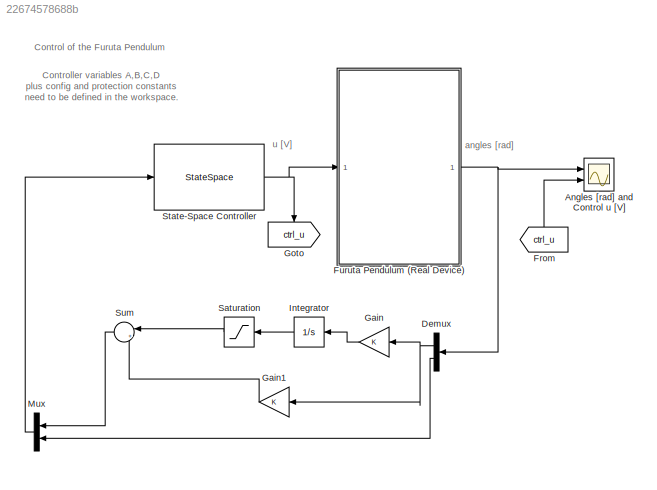
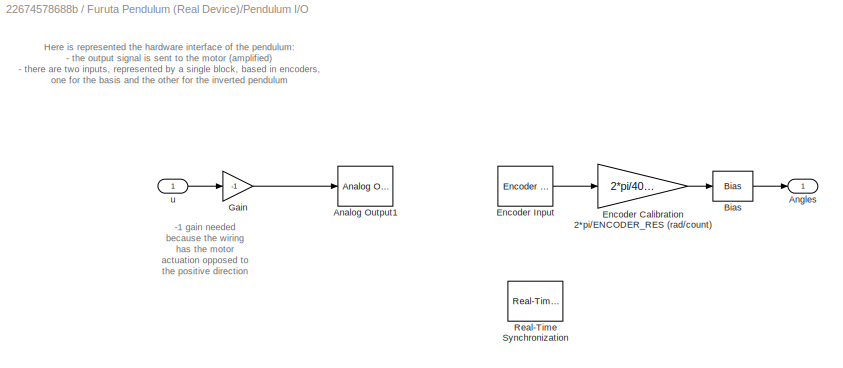
MODEL slx_22674578688b
KIND model
CONFIG AbsTol = auto
CONFIG FixedStep = auto
CONFIG MaxStep = auto
CONFIG MinStep = auto
CONFIG RelTol = 1e-3
CONFIG SampleTimeConstraint = Unconstrained
CONFIG Solver = ode3
CONFIG SolverMode = SingleTasking
CONFIG SolverName = ode3
CONFIG StartTime = 0.0
CONFIG StopTime = 60
BLOCK [Scope] Angles [rad] and Control u [V]
  DataFormat = StructureWithTime
  Floating = off
  LimitDataPoints = off
  NumInputPorts = 2
  Ports = [2]
  SampleInput = on
  SaveName = pendulum
  SaveToWorkspace = on
  YMax = 0.15~2.5
  YMin = -0.3~-2.5
  ZoomMode = yonly
BLOCK [Demux] Demux
  DisplayOption = bar
  Outputs = 2
  Ports = [1, 2]
BLOCK [From] From
  GotoTag = ctrl_u
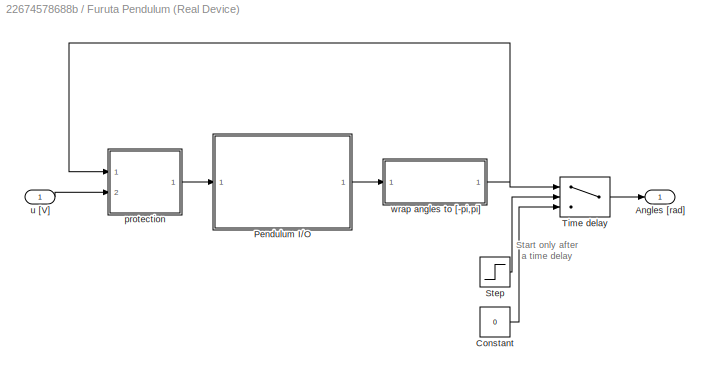
BLOCK [SubSystem] Furuta Pendulum (Real Device)
  Ports = [1, 1]
  RequestExecContextInheritance = off
BLOCK [Outport] Furuta Pendulum (Real Device)/Angles [rad]
  IconDisplay = Port number
BLOCK [Constant] Furuta Pendulum (Real Device)/Constant
  Value = 0
BLOCK [SubSystem] Furuta Pendulum (Real Device)/Pendulum I//O
  Ports = [1, 1]
  RequestExecContextInheritance = off
BLOCK [Reference] Furuta Pendulum (Real Device)/Pendulum I//O/Analog Output1  REF=sldrtlib/Analog Output
  AttributesFormatString = National Instruments\nPCI-6221 [auto]
  Channels = 1
  DrvAddress = 4294967295
  DrvName = National_Instruments/PCI-6221
  DrvOptions = [0 0 0 2 2]
  FinalValue = 0
  InitialValue = []
  MaxMissedTicks = inf
  Ports = [1]
  RangeMode = 1
  SampleTime = 0.001
  ShowMissedTicks = off
  SourceBlock = sldrtlib/Analog Output
  SourceType = Simulink Desktop Real-Time Analog Output
  VoltRange = 1
  YieldWhenWaiting = off
BLOCK [Outport] Furuta Pendulum (Real Device)/Pendulum I//O/Angles
  IconDisplay = Port number
BLOCK [Bias] Furuta Pendulum (Real Device)/Pendulum I//O/Bias
  Bias = [0 pi]
  SaturateOnIntegerOverflow = off
BLOCK [Gain] Furuta Pendulum (Real Device)/Pendulum I//O/Encoder Calibration 2*pi//ENCODER_RES (rad//count)
  Gain = 2*pi/4096
BLOCK [Reference] Furuta Pendulum (Real Device)/Pendulum I//O/Encoder Input  REF=sldrtlib/Encoder Input
  AttributesFormatString = National Instruments\nPCI-6221 [auto]
  Channels = 1:2
  DataType = 1
  DrvAddress = 4294967295
  DrvName = National_Instruments/PCI-6221
  DrvOptions = [0 0 0 2 2]
  IndexPulse = 2
  InputFilter = Inf
  MaxMissedTicks = inf
  Ports = [0, 1]
  QuadMode = 3
  SampleTime = 0.001
  ShowMissedTicks = off
  SourceBlock = sldrtlib/Encoder Input
  SourceType = Simulink Desktop Real-Time Encoder Input
  YieldWhenWaiting = off
BLOCK [Gain] Furuta Pendulum (Real Device)/Pendulum I//O/Gain
  Gain = -1
  OutDataTypeStr = Inherit: Inherit via internal rule
  ParamDataTypeStr = Inherit: Inherit via internal rule
  SaturateOnIntegerOverflow = off
BLOCK [Reference] Furuta Pendulum (Real Device)/Pendulum I//O/Real-Time Synchronization  REF=sldrtlib/Real-Time
Synchronization
  MaxMissedTicks = inf
  Ports = []
  SampleTime = 0.001
  ShowMissedTicks = off
  SourceBlock = sldrtlib/Real-Time\nSynchronization
  SourceType = Simulink Desktop Real-Time Synchronization
  YieldWhenWaiting = off
BLOCK [Inport] Furuta Pendulum (Real Device)/Pendulum I//O/u
  IconDisplay = Port number
BLOCK [Step] Furuta Pendulum (Real Device)/Step
  SampleTime = 0
  Time = TIME_DELAY
BLOCK [Switch] Furuta Pendulum (Real Device)/Time delay
  Criteria = u2 > Threshold
  InputSameDT = off
  SaturateOnIntegerOverflow = off
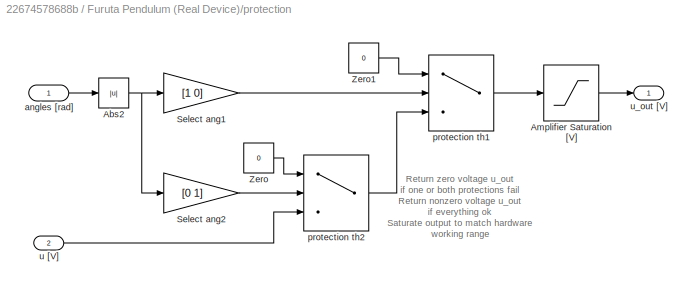
BLOCK [SubSystem] Furuta Pendulum (Real Device)/protection
  Ports = [2, 1]
  RequestExecContextInheritance = off
BLOCK [Abs] Furuta Pendulum (Real Device)/protection/Abs2
  SaturateOnIntegerOverflow = off
BLOCK [Saturate] Furuta Pendulum (Real Device)/protection/Amplifier Saturation [V]
  InputPortMap = u0
  LowerLimit = -MOTOR_SAT
  Ports = [1, 1]
  UpperLimit = MOTOR_SAT
BLOCK [Gain] Furuta Pendulum (Real Device)/protection/Select ang1
  Gain = [1 0]
  Multiplication = Matrix(K*u)
  OutDataTypeStr = Inherit: Inherit via internal rule
  ParamDataTypeStr = Inherit: Inherit via internal rule
  SaturateOnIntegerOverflow = off
BLOCK [Gain] Furuta Pendulum (Real Device)/protection/Select ang2
  Gain = [0 1]
  Multiplication = Matrix(K*u)
  OutDataTypeStr = Inherit: Inherit via internal rule
  ParamDataTypeStr = Inherit: Inherit via internal rule
  SaturateOnIntegerOverflow = off
BLOCK [Constant] Furuta Pendulum (Real Device)/protection/Zero
  Value = 0
BLOCK [Constant] Furuta Pendulum (Real Device)/protection/Zero1
  Value = 0
BLOCK [Inport] Furuta Pendulum (Real Device)/protection/angles [rad]
  IconDisplay = Port number
BLOCK [Switch] Furuta Pendulum (Real Device)/protection/protection th1
  InputSameDT = off
  SaturateOnIntegerOverflow = off
  Threshold = TH1_BOUND
BLOCK [Switch] Furuta Pendulum (Real Device)/protection/protection th2
  InputSameDT = off
  SaturateOnIntegerOverflow = off
  Threshold = TH2_BOUND
BLOCK [Inport] Furuta Pendulum (Real Device)/protection/u [V]
  IconDisplay = Port number
  Port = 2
BLOCK [Outport] Furuta Pendulum (Real Device)/protection/u_out [V]
  IconDisplay = Port number
BLOCK [Inport] Furuta Pendulum (Real Device)/u [V]
  IconDisplay = Port number
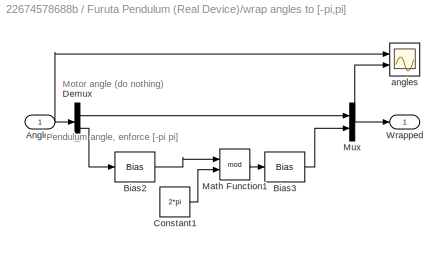
BLOCK [SubSystem] Furuta Pendulum (Real Device)/wrap angles to [-pi,pi]
  Ports = [1, 1]
  RequestExecContextInheritance = off
BLOCK [Inport] Furuta Pendulum (Real Device)/wrap angles to [-pi,pi]/Angles
  IconDisplay = Port number
BLOCK [Bias] Furuta Pendulum (Real Device)/wrap angles to [-pi,pi]/Bias2
  Bias = pi
  SaturateOnIntegerOverflow = off
BLOCK [Bias] Furuta Pendulum (Real Device)/wrap angles to [-pi,pi]/Bias3
  Bias = -pi
  SaturateOnIntegerOverflow = off
BLOCK [Constant] Furuta Pendulum (Real Device)/wrap angles to [-pi,pi]/Constant1
  Value = 2*pi
BLOCK [Demux] Furuta Pendulum (Real Device)/wrap angles to [-pi,pi]/Demux
  DisplayOption = bar
  Outputs = 2
  Ports = [1, 2]
BLOCK [Math] Furuta Pendulum (Real Device)/wrap angles to [-pi,pi]/Math Function1
  Operator = mod
  Ports = [2, 1]
BLOCK [Mux] Furuta Pendulum (Real Device)/wrap angles to [-pi,pi]/Mux
  DisplayOption = bar
  Inputs = 2
  Ports = [2, 1]
BLOCK [Outport] Furuta Pendulum (Real Device)/wrap angles to [-pi,pi]/Wrapped
  IconDisplay = Port number
BLOCK [Scope] Furuta Pendulum (Real Device)/wrap angles to [-pi,pi]/angles
  Floating = off
  LimitDataPoints = off
  NumInputPorts = 2
  Ports = [2]
  YMax = 7~4
  YMin = -1~-4
BLOCK [Gain] Gain
  OutDataTypeStr = Inherit: Inherit via internal rule
  ParamDataTypeStr = Inherit: Inherit via internal rule
  SaturateOnIntegerOverflow = off
BLOCK [Gain] Gain1
  OutDataTypeStr = Inherit: Inherit via internal rule
  ParamDataTypeStr = Inherit: Inherit via internal rule
  SaturateOnIntegerOverflow = off
BLOCK [Goto] Goto
  GotoTag = ctrl_u
BLOCK [Integrator] Integrator
  Ports = [1, 1]
BLOCK [Mux] Mux
  DisplayOption = bar
  Inputs = 2
  Ports = [2, 1]
BLOCK [Saturate] Saturation
  InputPortMap = u0
  LowerLimit = -3
  Ports = [1, 1]
  UpperLimit = 3
BLOCK [StateSpace] State-Space Controller
  A = A-B*K-L*C
  B = L
  C = -K
  D = D'
  Ports = [1, 1]
  X0 = 0
BLOCK [Sum] Sum
  IconShape = round
  InputSameDT = off
  Inputs = |++
  OutDataTypeStr = Inherit: Inherit via internal rule
  Ports = [2, 1]
  SaturateOnIntegerOverflow = off
ANNOTATION (root): Control of the Furuta Pendulum
ANNOTATION (root): angles [rad]
ANNOTATION (root): Controller variables A,B,C,D plus config and protection constants need to be defined in the workspace.
ANNOTATION (root): u [V]
ANNOTATION Furuta Pendulum (Real Device): Start only after a time delay
ANNOTATION Furuta Pendulum (Real Device)/Pendulum I//O: Here is represented the hardware interface of the pendulum: - the output signal is sent to the motor (amplified) - there are two inputs, represented by a single block, based in encoders, one for the basis and the other for the inverted pendulum
ANNOTATION Furuta Pendulum (Real Device)/Pendulum I//O: -1 gain needed because the wiring has the motor actuation opposed to the positive direction
ANNOTATION Furuta Pendulum (Real Device)/protection: Return zero voltage u_out if one or both protections fail Return nonzero voltage u_out if everything ok Saturate output to match hardware working range
ANNOTATION Furuta Pendulum (Real Device)/wrap angles to [-pi,pi]: Motor angle (do nothing)
ANNOTATION Furuta Pendulum (Real Device)/wrap angles to [-pi,pi]: Pendulum angle, enforce [-pi pi]
NET Demux:1 -> Gain1:1, Gain:1
LINE Demux:2 -> Mux:2
LINE From:1 -> Angles [rad] and Control u [V]:2
LINE Furuta Pendulum (Real Device)/Constant:1 -> Furuta Pendulum (Real Device)/Time delay:3
LINE Furuta Pendulum (Real Device)/Pendulum I//O/Bias:1 -> Furuta Pendulum (Real Device)/Pendulum I//O/Angles:1
LINE Furuta Pendulum (Real Device)/Pendulum I//O/Encoder Calibration 2*pi//ENCODER_RES (rad//count):1 -> Furuta Pendulum (Real Device)/Pendulum I//O/Bias:1
LINE Furuta Pendulum (Real Device)/Pendulum I//O/Encoder Input:1 -> Furuta Pendulum (Real Device)/Pendulum I//O/Encoder Calibration 2*pi//ENCODER_RES (rad//count):1
LINE Furuta Pendulum (Real Device)/Pendulum I//O/Gain:1 -> Furuta Pendulum (Real Device)/Pendulum I//O/Analog Output1:1
LINE Furuta Pendulum (Real Device)/Pendulum I//O/u:1 -> Furuta Pendulum (Real Device)/Pendulum I//O/Gain:1
LINE Furuta Pendulum (Real Device)/Pendulum I//O:1 -> Furuta Pendulum (Real Device)/wrap angles to [-pi,pi]:1
LINE Furuta Pendulum (Real Device)/Step:1 -> Furuta Pendulum (Real Device)/Time delay:2
LINE Furuta Pendulum (Real Device)/Time delay:1 -> Furuta Pendulum (Real Device)/Angles [rad]:1
NET Furuta Pendulum (Real Device)/protection/Abs2:1 -> Furuta Pendulum (Real Device)/protection/Select ang1:1, Furuta Pendulum (Real Device)/protection/Select ang2:1
LINE Furuta Pendulum (Real Device)/protection/Amplifier Saturation [V]:1 -> Furuta Pendulum (Real Device)/protection/u_out [V]:1
LINE Furuta Pendulum (Real Device)/protection/Select ang1:1 -> Furuta Pendulum (Real Device)/protection/protection th1:2
LINE Furuta Pendulum (Real Device)/protection/Select ang2:1 -> Furuta Pendulum (Real Device)/protection/protection th2:2
LINE Furuta Pendulum (Real Device)/protection/Zero1:1 -> Furuta Pendulum (Real Device)/protection/protection th1:1
LINE Furuta Pendulum (Real Device)/protection/Zero:1 -> Furuta Pendulum (Real Device)/protection/protection th2:1
LINE Furuta Pendulum (Real Device)/protection/angles [rad]:1 -> Furuta Pendulum (Real Device)/protection/Abs2:1
LINE Furuta Pendulum (Real Device)/protection/protection th1:1 -> Furuta Pendulum (Real Device)/protection/Amplifier Saturation [V]:1
LINE Furuta Pendulum (Real Device)/protection/protection th2:1 -> Furuta Pendulum (Real Device)/protection/protection th1:3
LINE Furuta Pendulum (Real Device)/protection/u [V]:1 -> Furuta Pendulum (Real Device)/protection/protection th2:3
LINE Furuta Pendulum (Real Device)/protection:1 -> Furuta Pendulum (Real Device)/Pendulum I//O:1
LINE Furuta Pendulum (Real Device)/u [V]:1 -> Furuta Pendulum (Real Device)/protection:2
NET Furuta Pendulum (Real Device)/wrap angles to [-pi,pi]/Angles:1 -> Furuta Pendulum (Real Device)/wrap angles to [-pi,pi]/Demux:1, Furuta Pendulum (Real Device)/wrap angles to [-pi,pi]/angles:1
LINE Furuta Pendulum (Real Device)/wrap angles to [-pi,pi]/Bias2:1 -> Furuta Pendulum (Real Device)/wrap angles to [-pi,pi]/Math Function1:1
LINE Furuta Pendulum (Real Device)/wrap angles to [-pi,pi]/Bias3:1 -> Furuta Pendulum (Real Device)/wrap angles to [-pi,pi]/Mux:2
LINE Furuta Pendulum (Real Device)/wrap angles to [-pi,pi]/Constant1:1 -> Furuta Pendulum (Real Device)/wrap angles to [-pi,pi]/Math Function1:2
LINE Furuta Pendulum (Real Device)/wrap angles to [-pi,pi]/Demux:1 -> Furuta Pendulum (Real Device)/wrap angles to [-pi,pi]/Mux:1
LINE Furuta Pendulum (Real Device)/wrap angles to [-pi,pi]/Demux:2 -> Furuta Pendulum (Real Device)/wrap angles to [-pi,pi]/Bias2:1
LINE Furuta Pendulum (Real Device)/wrap angles to [-pi,pi]/Math Function1:1 -> Furuta Pendulum (Real Device)/wrap angles to [-pi,pi]/Bias3:1
NET Furuta Pendulum (Real Device)/wrap angles to [-pi,pi]/Mux:1 -> Furuta Pendulum (Real Device)/wrap angles to [-pi,pi]/Wrapped:1, Furuta Pendulum (Real Device)/wrap angles to [-pi,pi]/angles:2
NET Furuta Pendulum (Real Device)/wrap angles to [-pi,pi]:1 -> Furuta Pendulum (Real Device)/Time delay:1, Furuta Pendulum (Real Device)/protection:1
NET Furuta Pendulum (Real Device):1 -> Angles [rad] and Control u [V]:1, Demux:1
LINE Gain1:1 -> Sum:2
LINE Gain:1 -> Integrator:1
LINE Integrator:1 -> Saturation:1
LINE Mux:1 -> State-Space Controller:1
LINE Saturation:1 -> Sum:1
NET State-Space Controller:1 -> Furuta Pendulum (Real Device):1, Goto:1
LINE Sum:1 -> Mux:1
note: NET lines group one-source signal fan-out (src -> all destinations, sorted); 1:1 wires keep LINE
